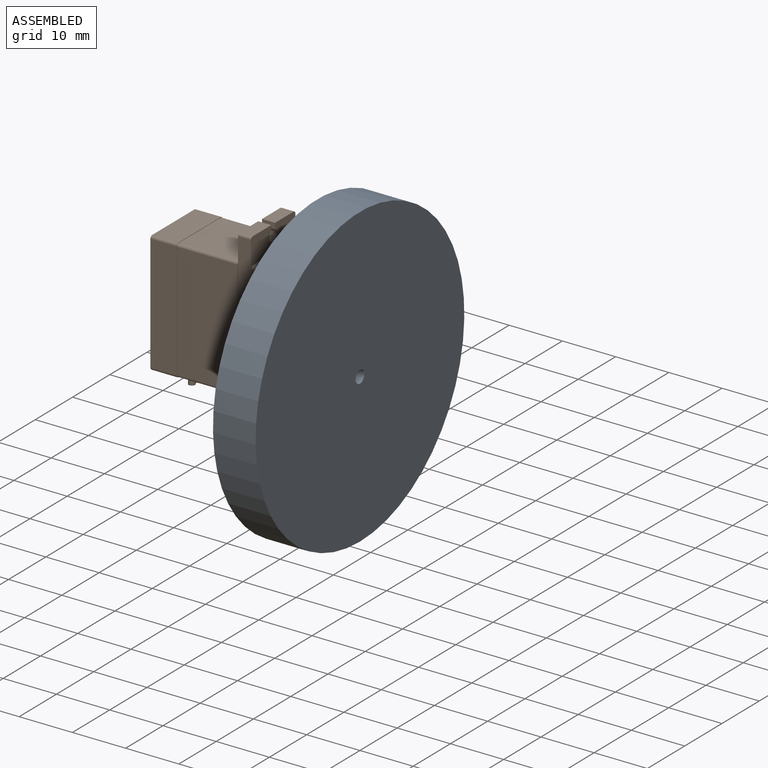
[diagram: assembled view]
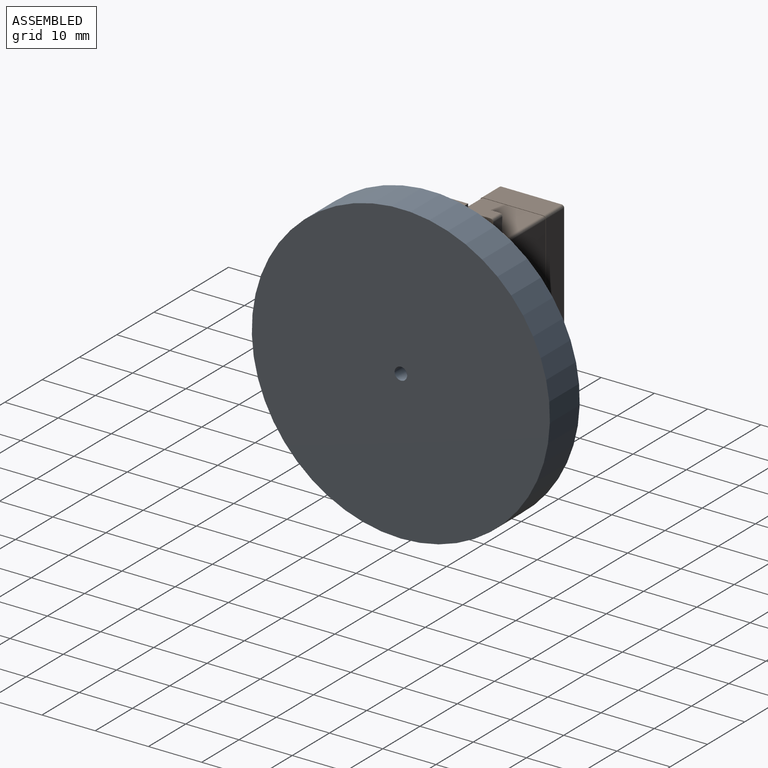
[diagram: assembled view, second angle]
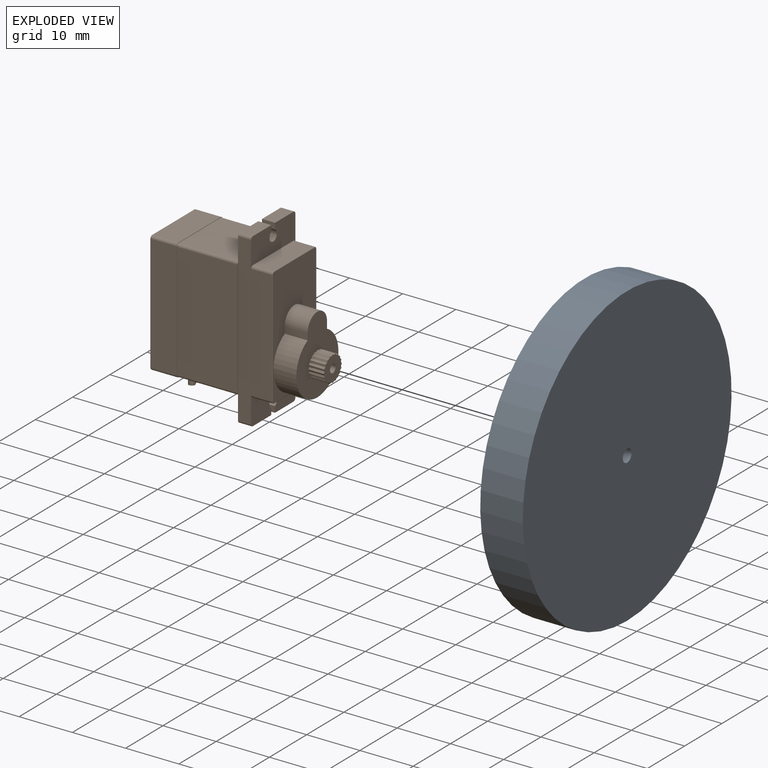
[diagram: exploded view]
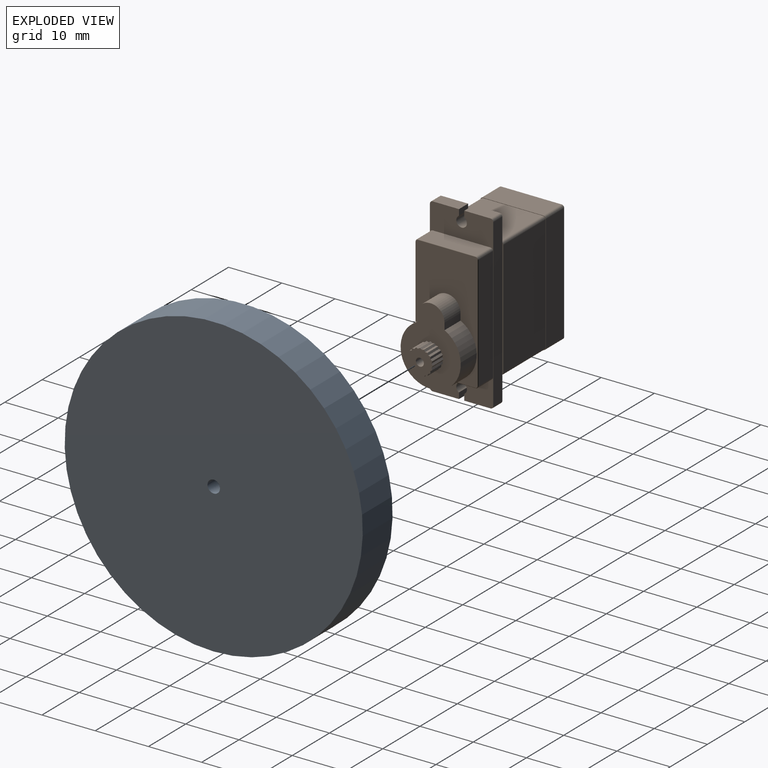
[diagram: exploded view, second angle]
ASSEMBLY  parts=2 mates=2
PART A: 6 faces, bbox 8x56x56 mm
  f0: cylinder r=28mm len=56mm, axis (-1,0,0), area 1407.4mm2, adj f1,f2
  f1: plane 56x56mm, normal (1,0,0), area 2458.7mm2, adj f0,f3
  f2: plane 56x56mm, normal (-1,0,0), area 2445.3mm2, adj f0,f5
  f3: cylinder r=1.18mm len=3mm, axis (-1,0,0), area 22.1mm2, adj f1,f4
  f4: plane 4.75x4.75mm, normal (-1,0,0), area 13.4mm2, adj f3,f5
  f5: cylinder r=2.38mm len=5mm, axis (-1,0,0), area 74.6mm2, adj f2,f4
PART B: 118 faces, bbox 12.4x30x32.3 mm
  f0: cylinder r=0.6mm len=3mm, axis (0,0,1), area 11.3mm2, adj f15,f117
  f1: cylinder r=0.6mm len=3mm, axis (0,0,1), area 11.3mm2, adj f15,f116
  f2: cylinder r=0.6mm len=3mm, axis (0,0,1), area 11.3mm2, adj f15,f115
  f3: cylinder r=0.75mm len=2.9mm, axis (0,-1,0), area 13.7mm2, adj f97,f98
  f4: cylinder r=5.65mm len=11.3mm, axis (0,-1,0), area 129.4mm2, adj f6,f53,f54,f55
  f5: cylinder r=1mm len=2.45mm, axis (0,-1,0), area 12.8mm2, adj f7,f29,f42,f43
  f6: plane 14.55x11.3mm, normal (0,1,0), area 98.5mm2, adj f4,f54,f55,f56,f57,f58,f59,f60
  f7: plane 32.25x11.9mm, normal (0,1,0), area 111.1mm2, adj f5,f30,f31,f32,f33,f34,f35,f36
  f8: plane 22.41x0.15mm, normal (0,1,0), area 3.3mm2, adj f23,f24,f25,f39
  f9: plane 22.85x12.3mm, normal (0,1,0), area 4.1mm2, adj f10,f11,f12,f13,f14,f15,f16,f17
  f10: cylinder r=0.5mm len=4.9mm, axis (0,-1,0), area 3.8mm2, adj f9,f11,f17,f112
  f11: plane 11.3x4.9mm, normal (0,0,1), area 55.4mm2, adj f9,f10,f12,f114
  f12: cylinder r=0.5mm len=4.9mm, axis (0,-1,0), area 3.8mm2, adj f9,f11,f13,f113
  f13: plane 21.85x4.9mm, normal (1,0,0), area 107.1mm2, adj f9,f12,f14,f111
  f14: cylinder r=0.5mm len=4.9mm, axis (0,-1,0), area 3.8mm2, adj f9,f13,f15,f109
  f15: plane 11.3x4.9mm, normal (0,0,-1), area 52mm2, adj f0,f1,f2,f9,f14,f16,f107
  f16: cylinder r=0.5mm len=4.9mm, axis (0,-1,0), area 3.8mm2, adj f9,f15,f17,f108
  f17: plane 21.85x4.9mm, normal (-1,0,0), area 107.1mm2, adj f9,f10,f16,f110
  f18: plane 22.65x12.1mm, normal (0,-1,0), area 273.9mm2, adj f107,f108,f109,f110,f111,f112,f113,f114
  f19: cylinder r=0.5mm len=11.35mm, axis (0,-1,0), area 8.9mm2, adj f9,f20,f26,f27,f29
  f20: plane 21.7x11.35mm, normal (1,0,0), area 246.3mm2, adj f9,f19,f21,f27
  f21: cylinder r=0.5mm len=11.35mm, axis (0,-1,0), area 8.9mm2, adj f9,f20,f22,f27,f28
  f22: plane 11.35x11.2mm, normal (0,0,-1), area 127.1mm2, adj f9,f21,f23,f28
  f23: cylinder r=0.5mm len=11.35mm, axis (0,-1,0), area 8.9mm2, adj f8,f9,f22,f24,f28
  f24: plane 21.7x11.35mm, normal (-1,0,0), area 246.3mm2, adj f8,f9,f23,f25
  f25: cylinder r=0.5mm len=11.35mm, axis (0,-1,0), area 8.9mm2, adj f8,f9,f24,f26,f29
  f26: plane 11.35x11.2mm, normal (0,0,1), area 127.1mm2, adj f9,f19,f25,f29
  f27: plane 22.41x0.15mm, normal (0,1,0), area 3.3mm2, adj f19,f20,f21,f31
  f28: plane 11.9x4.92mm, normal (0,-1,0), area 52.6mm2, adj f21,f22,f23,f31,f32,f33,f34,f35
  f29: plane 11.9x4.92mm, normal (0,-1,0), area 52.6mm2, adj f5,f19,f25,f26,f30,f31,f39,f40
  f30: cylinder r=0.5mm len=2.45mm, axis (0,-1,0), area 1.9mm2, adj f7,f29,f31,f44
  f31: plane 31.25x2.45mm, normal (1,0,0), area 76.6mm2, adj f7,f27,f28,f29,f30,f32
  f32: cylinder r=0.5mm len=2.45mm, axis (0,-1,0), area 1.9mm2, adj f7,f28,f31,f33
  f33: plane 4.95x2.45mm, normal (0,0,-1), area 12.1mm2, adj f7,f28,f32,f34
  f34: plane 2.45x1.13mm, normal (-1,0,0), area 2.8mm2, adj f7,f28,f33,f35
  f35: cylinder r=1mm len=2.45mm, axis (0,-1,0), area 12.8mm2, adj f7,f28,f34,f36
  f36: plane 2.45x1.13mm, normal (1,0,0), area 2.8mm2, adj f7,f28,f35,f37
  f37: plane 4.95x2.45mm, normal (0,0,-1), area 12.1mm2, adj f7,f28,f36,f38
  f38: cylinder r=0.5mm len=2.45mm, axis (0,-1,0), area 1.9mm2, adj f7,f28,f37,f39
  f39: plane 31.25x2.45mm, normal (-1,0,0), area 76.6mm2, adj f7,f8,f28,f29,f38,f40
  f40: cylinder r=0.5mm len=2.45mm, axis (0,-1,0), area 1.9mm2, adj f7,f29,f39,f41
  f41: plane 4.95x2.45mm, normal (0,0,1), area 12.1mm2, adj f7,f29,f40,f42
  f42: plane 2.45x1.13mm, normal (1,0,0), area 2.8mm2, adj f5,f7,f29,f41
  f43: plane 2.45x1.13mm, normal (-1,0,0), area 2.8mm2, adj f5,f7,f29,f44
  f44: plane 4.95x2.45mm, normal (0,0,1), area 12.1mm2, adj f7,f29,f30,f43
  f45: cylinder r=0.5mm len=3.9mm, axis (0,-1,0), area 3.1mm2, adj f7,f46,f52,f99
  f46: plane 21.4x3.9mm, normal (1,0,0), area 83.5mm2, adj f7,f45,f47,f100
  f47: cylinder r=0.5mm len=3.9mm, axis (0,-1,0), area 3.1mm2, adj f7,f46,f48,f102
  f48: plane 10.8x3.9mm, normal (0,0,-1), area 42.1mm2, adj f7,f47,f49,f104
  f49: cylinder r=0.5mm len=3.9mm, axis (0,-1,0), area 3.1mm2, adj f7,f48,f50,f106
  f50: plane 21.4x3.9mm, normal (-1,0,0), area 83.5mm2, adj f7,f49,f51,f105
  f51: cylinder r=0.5mm len=3.9mm, axis (0,-1,0), area 3.1mm2, adj f7,f50,f52,f103
  f52: plane 10.8x3.9mm, normal (0,0,1), area 42.1mm2, adj f7,f45,f51,f101
  f53: plane 22.2x11.6mm, normal (0,1,0), area 142mm2, adj f4,f54,f55,f56,f99,f100,f101,f102
  f54: plane 4.3x1.28mm, normal (1,0,0), area 5.5mm2, adj f4,f6,f53,f56
  f55: plane 4.3x1.28mm, normal (-1,0,0), area 5.5mm2, adj f4,f6,f53,f56
  f56: cylinder r=2.6mm len=5.2mm, axis (0,-1,0), area 35.1mm2, adj f6,f53,f54,f55
  f57: plane 2.9x0.32mm, normal (0.63,0,-0.78), area 1.2mm2, adj f6,f58,f96,f97
  f58: plane 2.9x0.42mm, normal (1,0,-0.05), area 1.2mm2, adj f6,f57,f59,f97
  f59: plane 2.9x0.39mm, normal (0.36,0,-0.93), area 1.2mm2, adj f6,f58,f60,f97
  f60: plane 2.9x0.39mm, normal (0.93,0,-0.36), area 1.2mm2, adj f6,f59,f61,f97
  f61: plane 2.9x0.42mm, normal (0.05,0,-1), area 1.2mm2, adj f6,f60,f62,f97
  f62: plane 2.9x0.32mm, normal (0.78,0,-0.63), area 1.2mm2, adj f6,f61,f63,f97
  f63: plane 2.9x0.4mm, normal (-0.26,0,-0.97), area 1.2mm2, adj f6,f62,f64,f97
  f64: plane 2.9x0.35mm, normal (0.55,0,-0.84), area 1.2mm2, adj f6,f63,f65,f97
  f65: plane 2.9x0.35mm, normal (-0.55,0,-0.84), area 1.2mm2, adj f6,f64,f66,f97
  f66: plane 2.9x0.4mm, normal (0.26,0,-0.97), area 1.2mm2, adj f6,f65,f67,f97
  f67: plane 2.9x0.32mm, normal (-0.78,0,-0.63), area 1.2mm2, adj f6,f66,f68,f97
  f68: plane 2.9x0.42mm, normal (-0.05,0,-1), area 1.2mm2, adj f6,f67,f69,f97
  f69: plane 2.9x0.39mm, normal (-0.93,0,-0.36), area 1.2mm2, adj f6,f68,f70,f97
  f70: plane 2.9x0.39mm, normal (-0.36,0,-0.93), area 1.2mm2, adj f6,f69,f71,f97
  f71: plane 2.9x0.42mm, normal (-1,0,-0.05), area 1.2mm2, adj f6,f70,f72,f97
  f72: plane 2.9x0.32mm, normal (-0.63,0,-0.78), area 1.2mm2, adj f6,f71,f73,f97
  f73: plane 2.9x0.4mm, normal (-0.97,0,0.26), area 1.2mm2, adj f6,f72,f74,f97
  f74: plane 2.9x0.35mm, normal (-0.84,0,-0.55), area 1.2mm2, adj f6,f73,f75,f97
  f75: plane 2.9x0.35mm, normal (-0.84,0,0.55), area 1.2mm2, adj f6,f74,f76,f97
  f76: plane 2.9x0.4mm, normal (-0.97,0,-0.26), area 1.2mm2, adj f6,f75,f77,f97
  f77: plane 2.9x0.32mm, normal (-0.63,0,0.78), area 1.2mm2, adj f6,f76,f78,f97
  f78: plane 2.9x0.42mm, normal (-1,0,0.05), area 1.2mm2, adj f6,f77,f79,f97
  f79: plane 2.9x0.39mm, normal (-0.36,0,0.93), area 1.2mm2, adj f6,f78,f80,f97
  f80: plane 2.9x0.39mm, normal (-0.93,0,0.36), area 1.2mm2, adj f6,f79,f81,f97
  f81: plane 2.9x0.42mm, normal (-0.05,0,1), area 1.2mm2, adj f6,f80,f82,f97
  f82: plane 2.9x0.32mm, normal (-0.78,0,0.63), area 1.2mm2, adj f6,f81,f83,f97
  f83: plane 2.9x0.4mm, normal (0.26,0,0.97), area 1.2mm2, adj f6,f82,f84,f97
  f84: plane 2.9x0.35mm, normal (-0.55,0,0.84), area 1.2mm2, adj f6,f83,f85,f97
  f85: plane 2.9x0.35mm, normal (0.55,0,0.84), area 1.2mm2, adj f6,f84,f86,f97
  f86: plane 2.9x0.4mm, normal (-0.26,0,0.97), area 1.2mm2, adj f6,f85,f87,f97
  f87: plane 2.9x0.32mm, normal (0.78,0,0.63), area 1.2mm2, adj f6,f86,f88,f97
  f88: plane 2.9x0.42mm, normal (0.05,0,1), area 1.2mm2, adj f6,f87,f89,f97
  f89: plane 2.9x0.39mm, normal (0.93,0,0.36), area 1.2mm2, adj f6,f88,f90,f97
  f90: plane 2.9x0.39mm, normal (0.36,0,0.93), area 1.2mm2, adj f6,f89,f91,f97
  f91: plane 2.9x0.42mm, normal (1,0,0.05), area 1.2mm2, adj f6,f90,f92,f97
  f92: plane 2.9x0.32mm, normal (0.63,0,0.78), area 1.2mm2, adj f6,f91,f93,f97
  f93: plane 2.9x0.4mm, normal (0.97,0,-0.26), area 1.2mm2, adj f6,f92,f94,f97
  f94: plane 2.9x0.35mm, normal (0.84,0,0.55), area 1.2mm2, adj f6,f93,f95,f97
  f95: plane 2.9x0.35mm, normal (0.84,0,-0.55), area 1.2mm2, adj f6,f94,f96,f97
  f96: plane 2.9x0.4mm, normal (0.97,0,0.26), area 1.2mm2, adj f6,f57,f95,f97
  f97: plane 4.85x4.85mm, normal (0,1,0), area 15.1mm2, adj f3,f57,f58,f59,f60,f61,f62,f63
  f98: plane 1.5x1.5mm, normal (0,1,0), area 1.8mm2, adj f3
  f99: torus R=0.4mm, axis (0,1,0), area 0.1mm2, adj f45,f53,f100,f101
  f100: cylinder r=0.1mm len=21.4mm, axis (0,0,1), area 3.4mm2, adj f46,f53,f99,f102
  f101: cylinder r=0.1mm len=10.8mm, axis (-1,0,0), area 1.7mm2, adj f52,f53,f99,f103
  f102: torus R=0.4mm, axis (0,1,0), area 0.1mm2, adj f47,f53,f100,f104
  f103: torus R=0.4mm, axis (0,1,0), area 0.1mm2, adj f51,f53,f101,f105
  f104: cylinder r=0.1mm len=10.8mm, axis (1,0,0), area 1.7mm2, adj f48,f53,f102,f106
  f105: cylinder r=0.1mm len=21.4mm, axis (0,0,-1), area 3.4mm2, adj f50,f53,f103,f106
  f106: torus R=0.4mm, axis (0,1,0), area 0.1mm2, adj f49,f53,f104,f105
  f107: cylinder r=0.1mm len=11.3mm, axis (1,0,0), area 1.8mm2, adj f15,f18,f108,f109
  f108: torus R=0.4mm, axis (0,-1,0), area 0.1mm2, adj f16,f18,f107,f110
  f109: torus R=0.4mm, axis (0,-1,0), area 0.1mm2, adj f14,f18,f107,f111
  f110: cylinder r=0.1mm len=21.85mm, axis (0,0,-1), area 3.4mm2, adj f17,f18,f108,f112
  f111: cylinder r=0.1mm len=21.85mm, axis (0,0,1), area 3.4mm2, adj f13,f18,f109,f113
  f112: torus R=0.4mm, axis (0,-1,0), area 0.1mm2, adj f10,f18,f110,f114
  f113: torus R=0.4mm, axis (0,-1,0), area 0.1mm2, adj f12,f18,f111,f114
  f114: cylinder r=0.1mm len=11.3mm, axis (-1,0,0), area 1.8mm2, adj f11,f18,f112,f113
  f115: plane 1.2x1.2mm, normal (0,0,-1), area 1.1mm2, adj f2
  f116: plane 1.2x1.2mm, normal (0,0,-1), area 1.1mm2, adj f1
  f117: plane 1.2x1.2mm, normal (0,0,-1), area 1.1mm2, adj f0
PLACE A t=(4,0,0)mm
PLACE B rot(axis=(0,0,-1),90deg) t=(-27.1,0,5.45)mm fixed
MATE cylindrical B.f3 <-> A.f0  axis (-1,0,0) through (-2.15,0,0)mm
MATE planar A.f0 <-> B.f3  axis (-1,0,0) through (0,0,0)mm
